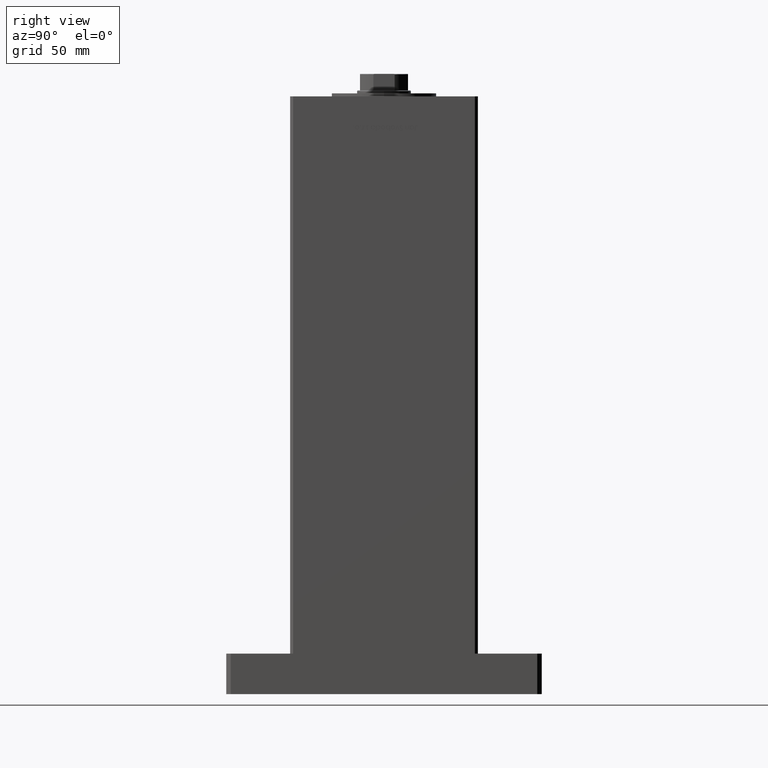
[diagram: clean part render]
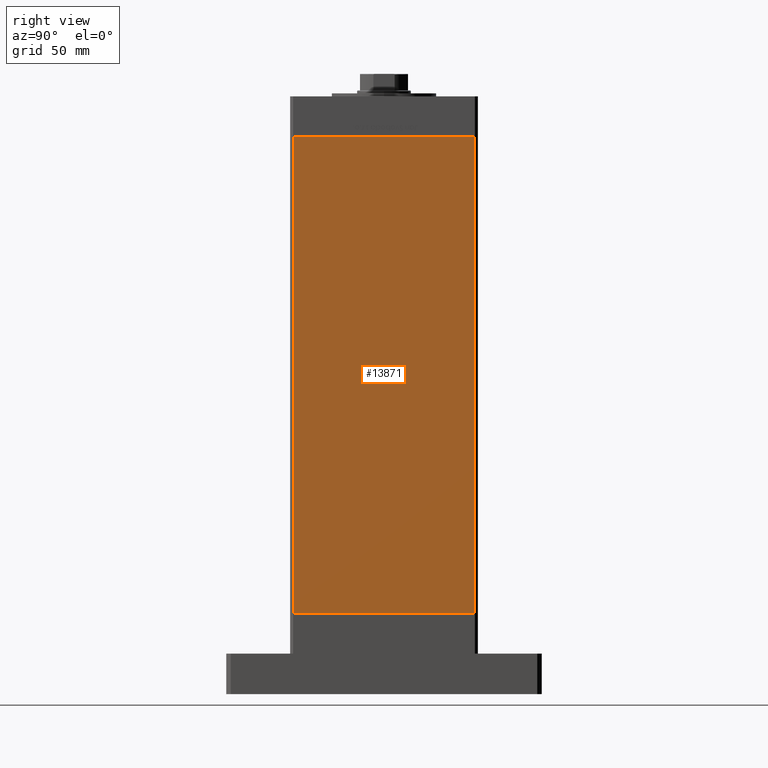
[diagram: same view with one face highlighted and labeled with its STEP entity id]
A machine part, right view. The second image highlights one B-rep face of the part: STEP entity #13871.
In plain terms, the highlighted planar face has unit normal (1, -0, 0).
Its self-contained STEP definition (entity closure, byte-faithful):
#3588 = CARTESIAN_POINT ( 'NONE',  ( 75.00000000000001421, 60.50000000000000000, 317.0000000000000000 ) ) ;
#4240 = CARTESIAN_POINT ( 'NONE',  ( 74.99999999999998579, -60.50000000000000000, 317.0000000000000000 ) ) ;
#5846 = DIRECTION ( 'NONE',  ( 2.293849224432141861E-16, 1.000000000000000000, 0.000000000000000000 ) ) ;
#7878 = LINE ( 'NONE', #19851, #48603 ) ;
#8782 = CARTESIAN_POINT ( 'NONE',  ( 75.00000000000001421, 60.50000000000000000, 317.0000000000000000 ) ) ;
#10207 = VERTEX_POINT ( 'NONE', #49583 ) ;
#12286 = ORIENTED_EDGE ( 'NONE', *, *, #22597, .T. ) ;
#13752 = PLANE ( 'NONE',  #20624 ) ;
#13871 = ADVANCED_FACE ( 'NONE', ( #50951 ), #13752, .T. ) ;
#15198 = LINE ( 'NONE', #32057, #51013 ) ;
#15742 = EDGE_CURVE ( 'NONE', #32947, #10207, #15198, .T. ) ;
#18324 = EDGE_CURVE ( 'NONE', #21801, #32947, #50332, .T. ) ;
#19851 = CARTESIAN_POINT ( 'NONE',  ( 75.00000000000001421, 60.50000000000000000, 317.0000000000000000 ) ) ;
#20328 = VERTEX_POINT ( 'NONE', #4240 ) ;
#20624 = AXIS2_PLACEMENT_3D ( 'NONE', #30335, #46884, #5846 ) ;
#21308 = ORIENTED_EDGE ( 'NONE', *, *, #15742, .F. ) ;
#21801 = VERTEX_POINT ( 'NONE', #3588 ) ;
#22597 = EDGE_CURVE ( 'NONE', #20328, #10207, #40468, .T. ) ;
#23372 = CARTESIAN_POINT ( 'NONE',  ( 75.00000000000001421, 60.50000000000000000, 0.000000000000000000 ) ) ;
#24461 = DIRECTION ( 'NONE',  ( -2.293849224432141861E-16, -1.000000000000000000, 0.000000000000000000 ) ) ;
#27445 = DIRECTION ( 'NONE',  ( -0.000000000000000000, -0.000000000000000000, -1.000000000000000000 ) ) ;
#30335 = CARTESIAN_POINT ( 'NONE',  ( 75.00000000000001421, 60.50000000000000000, 317.0000000000000000 ) ) ;
#31253 = CARTESIAN_POINT ( 'NONE',  ( 74.99999999999998579, -60.50000000000000000, 317.0000000000000000 ) ) ;
#31779 = DIRECTION ( 'NONE',  ( -2.293849224432141861E-16, -1.000000000000000000, 0.000000000000000000 ) ) ;
#32057 = CARTESIAN_POINT ( 'NONE',  ( 75.00000000000001421, 60.50000000000000000, 0.000000000000000000 ) ) ;
#32947 = VERTEX_POINT ( 'NONE', #23372 ) ;
#39981 = VECTOR ( 'NONE', #27445, 1000.000000000000000 ) ;
#40468 = LINE ( 'NONE', #31253, #39981 ) ;
#44587 = ORIENTED_EDGE ( 'NONE', *, *, #44620, .T. ) ;
#44620 = EDGE_CURVE ( 'NONE', #21801, #20328, #7878, .T. ) ;
#45063 = VECTOR ( 'NONE', #47057, 1000.000000000000000 ) ;
#45247 = ORIENTED_EDGE ( 'NONE', *, *, #18324, .F. ) ;
#46884 = DIRECTION ( 'NONE',  ( 1.000000000000000000, -2.293849224432141861E-16, 0.000000000000000000 ) ) ;
#47057 = DIRECTION ( 'NONE',  ( -0.000000000000000000, -0.000000000000000000, -1.000000000000000000 ) ) ;
#48603 = VECTOR ( 'NONE', #24461, 1000.000000000000000 ) ;
#49583 = CARTESIAN_POINT ( 'NONE',  ( 74.99999999999998579, -60.50000000000000000, 0.000000000000000000 ) ) ;
#50332 = LINE ( 'NONE', #8782, #45063 ) ;
#50951 = FACE_OUTER_BOUND ( 'NONE', #51723, .T. ) ;
#51013 = VECTOR ( 'NONE', #31779, 1000.000000000000000 ) ;
#51723 = EDGE_LOOP ( 'NONE', ( #21308, #45247, #44587, #12286 ) ) ;